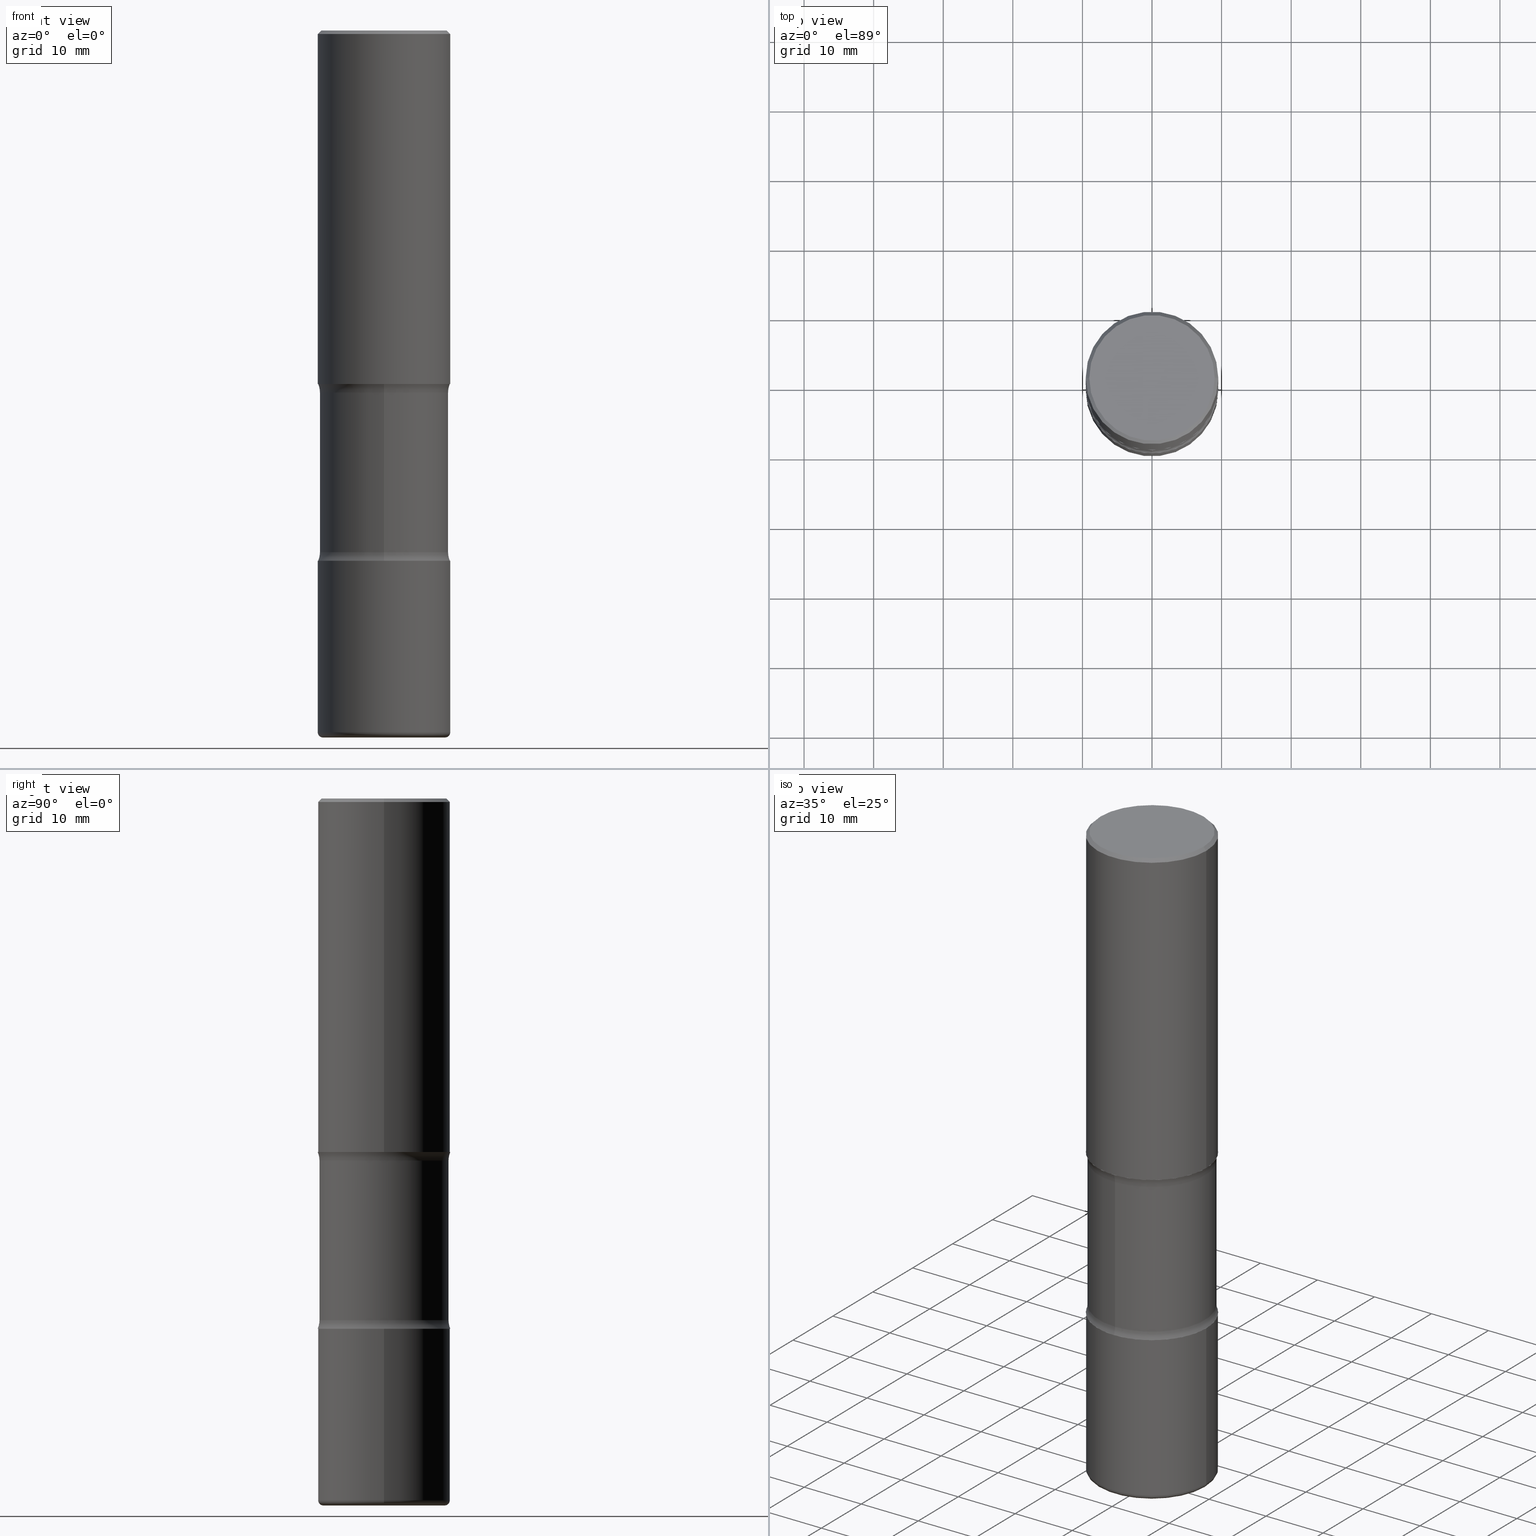
[diagram: canonical four-view strip — front | top / right | iso, engineering-drawing reading convention]
A machine part, canonical four-view strip (front | top / right | iso — engineering-drawing reading convention). The complete STEP part file that produces these views, byte-faithful:
ISO-10303-21;
HEADER;
FILE_DESCRIPTION (( 'STEP AP203' ),
    '1' );
FILE_NAME ('33519.STEP',
    '2024-03-01T22:43:57',
    ( '' ),
    ( '' ),
    'SwSTEP 2.0',
    'SolidWorks 2023',
    '' );
FILE_SCHEMA (( 'CONFIG_CONTROL_DESIGN' ));
ENDSEC;

DATA;
#1 = CARTESIAN_POINT ( 'NONE',  ( 5.191958536339396350E-29, -6.894495272493812152E-15, -2.048989794855665458 ) ) ;
#2 = CARTESIAN_POINT ( 'NONE',  ( 3.421651712066320939E-15, 0.4899999999999929412, -2.048989794855667235 ) ) ;
#3 = CARTESIAN_POINT ( 'NONE',  ( -0.3450000000000001399, -1.135559928655356955E-14, -4.000000000000000000 ) ) ;
#4 = CIRCLE ( 'NONE', #302, 0.3750000000000009437 ) ;
#5 = CARTESIAN_POINT ( 'NONE',  ( -0.3450000000000009170, -1.140980847683493404E-14, -3.969999999999999307 ) ) ;
#6 = EDGE_CURVE ( 'NONE', #410, #147, #288, .T. ) ;
#7 = PERSON_AND_ORGANIZATION ( #455, #47 ) ;
#8 = APPROVAL_STATUS ( 'not_yet_approved' ) ;
#9 = CARTESIAN_POINT ( 'NONE',  ( 0.000000000000000000, 0.000000000000000000, 0.000000000000000000 ) ) ;
#10 = CLOSED_SHELL ( 'NONE', ( #523, #242, #122, #265, #543, #520 ) ) ;
#11 = AXIS2_PLACEMENT_3D ( 'NONE', #34, #66, #552 ) ;
#12 = APPROVAL_DATE_TIME ( #266, #80 ) ;
#13 = CARTESIAN_POINT ( 'NONE',  ( -0.3750000000000008327, 2.664535259100381613E-15, -1.844600658845593802E-29 ) ) ;
#14 = DIRECTION ( 'NONE',  ( 6.982962677686265922E-15, 1.000000000000000000, -4.490709030680980363E-15 ) ) ;
#15 = PERSON_AND_ORGANIZATION_ROLE ( 'classification_officer' ) ;
#16 = DIRECTION ( 'NONE',  ( 6.982962677686265922E-15, 1.000000000000000000, -3.764364172614001380E-15 ) ) ;
#17 = CARTESIAN_POINT ( 'NONE',  ( 7.336406418555407548E-29, -1.047444401652943320E-14, -2.999999999999999112 ) ) ;
#18 = AXIS2_PLACEMENT_3D ( 'NONE', #17, #483, #351 ) ;
#19 = AXIS2_PLACEMENT_3D ( 'NONE', #163, #275, #283 ) ;
#20 = LOCAL_TIME ( 17, 43, 57.00000000000000000, #101 ) ;
#21 = DIRECTION ( 'NONE',  ( -1.000000000000000000, 6.982962677686266711E-15, 0.000000000000000000 ) ) ;
#22 = EDGE_CURVE ( 'NONE', #190, #147, #527, .T. ) ;
#23 = DIRECTION ( 'NONE',  ( 2.438088387897960049E-29, -3.491481338843145188E-15, -1.000000000000000000 ) ) ;
#24 = VERTEX_POINT ( 'NONE', #383 ) ;
#25 = VERTEX_POINT ( 'NONE', #3 ) ;
#26 = DIRECTION ( 'NONE',  ( 1.000000000000000000, -6.982962677686265922E-15, 4.876231632511976973E-29 ) ) ;
#27 = CIRCLE ( 'NONE', #90, 0.3550000000000008149 ) ;
#28 = ORIENTED_EDGE ( 'NONE', *, *, #194, .F. ) ;
#29 = TOROIDAL_SURFACE ( 'NONE', #339, 0.4899999999999998246, 0.1250000000000001110 ) ;
#30 = LOCAL_TIME ( 17, 43, 57.00000000000000000, #515 ) ;
#31 = DIRECTION ( 'NONE',  ( 6.982962677686265922E-15, 1.000000000000000000, -3.764364172614001380E-15 ) ) ;
#32 = EDGE_LOOP ( 'NONE', ( #166, #494 ) ) ;
#33 = VERTEX_POINT ( 'NONE', #297 ) ;
#34 = CARTESIAN_POINT ( 'NONE',  ( 9.708511160554990630E-29, -1.386118091520728581E-14, -3.969999999999999307 ) ) ;
#35 = CC_DESIGN_DATE_AND_TIME_ASSIGNMENT ( #271, #140, ( #219 ) ) ;
#36 = ORIENTED_EDGE ( 'NONE', *, *, #316, .F. ) ;
#37 = CARTESIAN_POINT ( 'NONE',  ( 5.081490676730588573E-29, -6.710079843915434973E-15, -2.000000000000000000 ) ) ;
#38 = CARTESIAN_POINT ( 'NONE',  ( 9.591322160380232129E-29, -1.423880818914343852E-14, -4.000000000000000000 ) ) ;
#39 = AXIS2_PLACEMENT_3D ( 'NONE', #181, #306, #148 ) ;
#40 = AXIS2_PLACEMENT_3D ( 'NONE', #38, #170, #382 ) ;
#41 = DIRECTION ( 'NONE',  ( -2.445468806185136597E-29, 3.491481338843145583E-15, 1.000000000000000000 ) ) ;
#42 = EDGE_CURVE ( 'NONE', #33, #541, #473, .T. ) ;
#43 = ORIENTED_EDGE ( 'NONE', *, *, #42, .F. ) ;
#44 = DIRECTION ( 'NONE',  ( -1.000000000000000000, 7.105427357601017636E-15, 0.000000000000000000 ) ) ;
#45 = VECTOR ( 'NONE', #300, 39.37007874015748143 ) ;
#46 = AXIS2_PLACEMENT_3D ( 'NONE', #550, #489, #452 ) ;
#47 = ORGANIZATION ( 'UNSPECIFIED', 'UNSPECIFIED', '' ) ;
#48 = DIRECTION ( 'NONE',  ( 2.254915741824821778E-29, -3.764364172614001380E-15, -1.000000000000000000 ) ) ;
#49 = APPROVAL_STATUS ( 'not_yet_approved' ) ;
#50 = DIRECTION ( 'NONE',  ( 6.860497997771532351E-15, 1.000000000000000000, 0.000000000000000000 ) ) ;
#51 = CC_DESIGN_PERSON_AND_ORGANIZATION_ASSIGNMENT ( #179, #485, ( #545 ) ) ;
#52 = CALENDAR_DATE ( 2024, 1, 3 ) ;
#53 = CARTESIAN_POINT ( 'NONE',  ( -1.043851414335219820E-46, 1.490343170380447200E-32, 4.268512490100411279E-18 ) ) ;
#54 = PERSON_AND_ORGANIZATION ( #455, #47 ) ;
#55 = DIRECTION ( 'NONE',  ( -2.445468806185136597E-29, 3.491481338843145583E-15, 1.000000000000000000 ) ) ;
#56 = CIRCLE ( 'NONE', #338, 0.3650000000000000466 ) ;
#57 = TOROIDAL_SURFACE ( 'NONE', #155, 0.3450000000000009170, 0.03000000000000019318 ) ;
#58 = APPROVAL ( #49, 'UNSPECIFIED' ) ;
#59 = FACE_OUTER_BOUND ( 'NONE', #505, .T. ) ;
#60 = CARTESIAN_POINT ( 'NONE',  ( -2.572686749164255705E-15, -0.3750000000000111577, -2.999999999999997335 ) ) ;
#61 = EDGE_CURVE ( 'NONE', #147, #82, #56, .T. ) ;
#62 = FACE_OUTER_BOUND ( 'NONE', #162, .T. ) ;
#63 = ADVANCED_FACE ( 'NONE', ( #487 ), #126, .T. ) ;
#64 = AXIS2_PLACEMENT_3D ( 'NONE', #359, #150, #105 ) ;
#65 = AXIS2_PLACEMENT_3D ( 'NONE', #200, #23, #500 ) ;
#66 = DIRECTION ( 'NONE',  ( -2.445468806185136597E-29, 3.491481338843145583E-15, 1.000000000000000000 ) ) ;
#67 = EDGE_LOOP ( 'NONE', ( #229, #72, #331, #43 ) ) ;
#68 = CARTESIAN_POINT ( 'NONE',  ( -1.043851414335219820E-46, 1.490343170380447200E-32, 4.268512490100411279E-18 ) ) ;
#69 = ORIENTED_EDGE ( 'NONE', *, *, #396, .F. ) ;
#70 = CARTESIAN_POINT ( 'NONE',  ( 4.890937612370273159E-31, -6.982962677686291609E-17, -0.02000000000000000042 ) ) ;
#71 = ORIENTED_EDGE ( 'NONE', *, *, #390, .F. ) ;
#72 = ORIENTED_EDGE ( 'NONE', *, *, #194, .T. ) ;
#73 = TOROIDAL_SURFACE ( 'NONE', #458, 0.4899999999999998246, 0.1250000000000001110 ) ;
#74 = PRODUCT_RELATED_PRODUCT_CATEGORY ( 'detail', '', ( #380 ) ) ;
#75 = FACE_OUTER_BOUND ( 'NONE', #113, .T. ) ;
#76 = ORIENTED_EDGE ( 'NONE', *, *, #178, .T. ) ;
#77 = FACE_OUTER_BOUND ( 'NONE', #559, .T. ) ;
#78 = ORIENTED_EDGE ( 'NONE', *, *, #512, .F. ) ;
#79 = DIRECTION ( 'NONE',  ( 1.000000000000000000, -6.982962677686266711E-15, 4.876176775795935232E-29 ) ) ;
#80 = APPROVAL ( #8, 'UNSPECIFIED' ) ;
#81 = FACE_OUTER_BOUND ( 'NONE', #32, .T. ) ;
#82 = VERTEX_POINT ( 'NONE', #362 ) ;
#83 = APPROVAL_PERSON_ORGANIZATION ( #7, #58, #133 ) ;
#84 = FACE_OUTER_BOUND ( 'NONE', #152, .T. ) ;
#85 = EDGE_CURVE ( 'NONE', #433, #498, #435, .T. ) ;
#86 = LINE ( 'NONE', #256, #187 ) ;
#87 =( LENGTH_UNIT ( ) NAMED_UNIT ( * ) SI_UNIT ( $, .METRE. ) );
#88 = CARTESIAN_POINT ( 'NONE',  ( 0.3750000000000008327, -2.618611004132355933E-15, 1.828566290923479846E-29 ) ) ;
#89 = DIRECTION ( 'NONE',  ( 6.982962677686265922E-15, 1.000000000000000000, -3.742257525567486660E-15 ) ) ;
#90 = AXIS2_PLACEMENT_3D ( 'NONE', #53, #440, #357 ) ;
#91 = AXIS2_PLACEMENT_3D ( 'NONE', #161, #404, #31 ) ;
#92 = LOCAL_TIME ( 17, 43, 57.00000000000000000, #480 ) ;
#93 = DIRECTION ( 'NONE',  ( -2.254915741824821218E-29, 3.764364172614001380E-15, 1.000000000000000000 ) ) ;
#94 = PERSON_AND_ORGANIZATION ( #455, #47 ) ;
#95 = DIRECTION ( 'NONE',  ( 6.982962677686265922E-15, 1.000000000000000000, -4.490709030680980363E-15 ) ) ;
#96 = APPROVAL ( #263, 'UNSPECIFIED' ) ;
#97 = CALENDAR_DATE ( 2024, 1, 3 ) ;
#98 = DIRECTION ( 'NONE',  ( -2.445468806185136877E-29, 3.491481338843145188E-15, 1.000000000000000000 ) ) ;
#99 = CIRCLE ( 'NONE', #409, 0.3649999999999997136 ) ;
#100 = AXIS2_PLACEMENT_3D ( 'NONE', #254, #422, #470 ) ;
#101 = COORDINATED_UNIVERSAL_TIME_OFFSET ( 5, 0, .BEHIND. ) ;
#102 = DIRECTION ( 'NONE',  ( 2.254915741824821778E-29, -3.764364172614001380E-15, -1.000000000000000000 ) ) ;
#103 = CALENDAR_DATE ( 2024, 1, 3 ) ;
#104 = CARTESIAN_POINT ( 'NONE',  ( 0.3750000000000009437, -1.647979191933964371E-14, -3.969999999999999307 ) ) ;
#105 = DIRECTION ( 'NONE',  ( -1.000000000000000000, 6.982962677686266711E-15, 0.000000000000000000 ) ) ;
#106 = CARTESIAN_POINT ( 'NONE',  ( 0.3450000000000009170, -1.627030303900905382E-14, -3.969999999999999307 ) ) ;
#107 = ORIENTED_EDGE ( 'NONE', *, *, #85, .T. ) ;
#108 = CIRCLE ( 'NONE', #119, 0.1250000000000001110 ) ;
#109 = ORIENTED_EDGE ( 'NONE', *, *, #168, .F. ) ;
#110 = CARTESIAN_POINT ( 'NONE',  ( 4.890937612370273194E-29, -6.982962677686291165E-15, -2.000000000000000000 ) ) ;
#111 = PLANE ( 'NONE',  #46 ) ;
#112 = ORIENTED_EDGE ( 'NONE', *, *, #165, .T. ) ;
#113 = EDGE_LOOP ( 'NONE', ( #411, #503 ) ) ;
#114 = ORIENTED_EDGE ( 'NONE', *, *, #537, .F. ) ;
#115 = CARTESIAN_POINT ( 'NONE',  ( 9.708511160554990630E-29, -1.386118091520728581E-14, -3.969999999999999307 ) ) ;
#116 = ORIENTED_EDGE ( 'NONE', *, *, #308, .T. ) ;
#117 = EDGE_LOOP ( 'NONE', ( #531, #245, #282, #414 ) ) ;
#118 = AXIS2_PLACEMENT_3D ( 'NONE', #315, #55, #391 ) ;
#119 = AXIS2_PLACEMENT_3D ( 'NONE', #125, #127, #466 ) ;
#120 = DIRECTION ( 'NONE',  ( 1.000000000000000000, -6.982962677686295898E-15, 0.000000000000000000 ) ) ;
#121 = VERTEX_POINT ( 'NONE', #139 ) ;
#122 = ADVANCED_FACE ( 'NONE', ( #522 ), #556, .T. ) ;
#123 = DIRECTION ( 'NONE',  ( 2.254915741824821778E-29, -3.764364172614001380E-15, -1.000000000000000000 ) ) ;
#124 = DIRECTION ( 'NONE',  ( 1.000000000000000000, -6.860497997771530774E-15, 4.837457028734946037E-29 ) ) ;
#125 = CARTESIAN_POINT ( 'NONE',  ( -3.361644018907997202E-15, -0.4900000000000067080, -2.048989794855663238 ) ) ;
#126 = TOROIDAL_SURFACE ( 'NONE', #399, 0.3450000000000009170, 0.03000000000000019318 ) ;
#127 = DIRECTION ( 'NONE',  ( 1.000000000000000000, -6.860497997771530774E-15, 4.837457028734946037E-29 ) ) ;
#128 = AXIS2_PLACEMENT_3D ( 'NONE', #9, #185, #486 ) ;
#129 = EDGE_CURVE ( 'NONE', #448, #454, #86, .T. ) ;
#130 = EDGE_CURVE ( 'NONE', #490, #465, #258, .T. ) ;
#131 = DIRECTION ( 'NONE',  ( 2.254915741824821778E-29, -3.764364172614001380E-15, -1.000000000000000000 ) ) ;
#132 = CARTESIAN_POINT ( 'NONE',  ( 5.201504553319908584E-29, -6.880824832852173514E-15, -2.048989794855665458 ) ) ;
#133 = APPROVAL_ROLE ( '' ) ;
#134 = CONICAL_SURFACE ( 'NONE', #476, 0.3750000000000007772, 0.7853981633974479459 ) ;
#135 = CARTESIAN_POINT ( 'NONE',  ( 1.038862923149454716E-28, -6.103487226666623881E-15, -2.999999999999999556 ) ) ;
#136 = CALENDAR_DATE ( 2024, 1, 3 ) ;
#137 = PLANE ( 'NONE',  #501 ) ;
#138 = EDGE_CURVE ( 'NONE', #541, #454, #509, .T. ) ;
#139 = CARTESIAN_POINT ( 'NONE',  ( -0.3750000000000009437, -8.618608931311945336E-16, -2.000000000000000000 ) ) ;
#140 = DATE_TIME_ROLE ( 'classification_date' ) ;
#141 = EDGE_CURVE ( 'NONE', #24, #490, #481, .T. ) ;
#142 = DIRECTION ( 'NONE',  ( -2.445468806185136877E-29, 3.491481338843145188E-15, 1.000000000000000000 ) ) ;
#143 = APPLICATION_PROTOCOL_DEFINITION ( 'international standard', 'config_control_design', 1994, #235 ) ;
#144 = DIRECTION ( 'NONE',  ( 1.000000000000000000, -6.982962677686266711E-15, 0.000000000000000000 ) ) ;
#145 = AXIS2_PLACEMENT_3D ( 'NONE', #536, #191, #244 ) ;
#146 = APPROVAL_DATE_TIME ( #177, #58 ) ;
#147 = VERTEX_POINT ( 'NONE', #225 ) ;
#148 = DIRECTION ( 'NONE',  ( -6.982962677686265133E-15, -1.000000000000000000, 0.000000000000000000 ) ) ;
#149 = DIRECTION ( 'NONE',  ( 2.254915741824821778E-29, -3.764364172614001380E-15, -1.000000000000000000 ) ) ;
#150 = DIRECTION ( 'NONE',  ( 2.445468806185136597E-29, -3.491481338843145583E-15, -1.000000000000000000 ) ) ;
#151 = DIRECTION ( 'NONE',  ( 1.000000000000000000, -6.982962677686266711E-15, 0.000000000000000000 ) ) ;
#152 = EDGE_LOOP ( 'NONE', ( #28, #417, #418, #36 ) ) ;
#153 = DIRECTION ( 'NONE',  ( 2.438088387897960049E-29, -3.491481338843145188E-15, -1.000000000000000000 ) ) ;
#154 = ORIENTED_EDGE ( 'NONE', *, *, #6, .F. ) ;
#155 = AXIS2_PLACEMENT_3D ( 'NONE', #115, #493, #416 ) ;
#156 = ORIENTED_EDGE ( 'NONE', *, *, #459, .F. ) ;
#157 = PLANE ( 'NONE',  #65 ) ;
#158 = VERTEX_POINT ( 'NONE', #443 ) ;
#159 = EDGE_LOOP ( 'NONE', ( #372, #548, #197, #363 ) ) ;
#160 = ORIENTED_EDGE ( 'NONE', *, *, #172, .F. ) ;
#161 = CARTESIAN_POINT ( 'NONE',  ( 7.216603403414470205E-29, -1.030339706199712749E-14, -2.951010205144334542 ) ) ;
#162 = EDGE_LOOP ( 'NONE', ( #397, #535, #201, #204 ) ) ;
#163 = CARTESIAN_POINT ( 'NONE',  ( 4.890937612370273194E-29, -6.982962677686291165E-15, -2.000000000000000000 ) ) ;
#164 = MANIFOLD_SOLID_BREP ( 'Body-Move/Copy2[2]', #10 ) ;
#165 = EDGE_CURVE ( 'NONE', #448, #234, #27, .T. ) ;
#166 = ORIENTED_EDGE ( 'NONE', *, *, #392, .F. ) ;
#167 = CIRCLE ( 'NONE', #11, 0.3750000000000007772 ) ;
#168 = EDGE_CURVE ( 'NONE', #410, #277, #446, .T. ) ;
#169 = AXIS2_PLACEMENT_3D ( 'NONE', #354, #314, #261 ) ;
#170 = DIRECTION ( 'NONE',  ( 2.254915741824821778E-29, -3.764364172614001380E-15, -1.000000000000000000 ) ) ;
#171 = CARTESIAN_POINT ( 'NONE',  ( -2.572686749164276610E-15, -0.3750000000000072164, -1.999999999999998668 ) ) ;
#172 = EDGE_CURVE ( 'NONE', #158, #82, #457, .T. ) ;
#173 = CARTESIAN_POINT ( 'NONE',  ( 0.3750000000000007772, -1.309305502066178953E-14, -2.999999999999999112 ) ) ;
#174 = DIRECTION ( 'NONE',  ( 1.000000000000000000, -6.982962677686265133E-15, 0.000000000000000000 ) ) ;
#175 = VECTOR ( 'NONE', #98, 39.37007874015748143 ) ;
#176 = FACE_OUTER_BOUND ( 'NONE', #205, .T. ) ;
#177 = DATE_AND_TIME ( #103, #20 ) ;
#178 = EDGE_CURVE ( 'NONE', #82, #147, #384, .T. ) ;
#179 = PERSON_AND_ORGANIZATION ( #455, #47 ) ;
#180 = AXIS2_PLACEMENT_3D ( 'NONE', #68, #233, #26 ) ;
#181 = CARTESIAN_POINT ( 'NONE',  ( 3.421651712066343816E-15, 0.4899999999999898326, -2.951010205144335874 ) ) ;
#182 = CC_DESIGN_APPROVAL ( #80, ( #545 ) ) ;
#183 = COORDINATED_UNIVERSAL_TIME_OFFSET ( 5, 0, .BEHIND. ) ;
#184 = ORIENTED_EDGE ( 'NONE', *, *, #463, .T. ) ;
#185 = DIRECTION ( 'NONE',  ( -2.445468806185136597E-29, 3.491481338843145583E-15, 1.000000000000000000 ) ) ;
#186 = DIRECTION ( 'NONE',  ( 2.254915741824821778E-29, -3.764364172614001380E-15, -1.000000000000000000 ) ) ;
#187 = VECTOR ( 'NONE', #394, 39.37007874015748143 ) ;
#188 = AXIS2_PLACEMENT_3D ( 'NONE', #226, #434, #388 ) ;
#189 = CARTESIAN_POINT ( 'NONE',  ( 7.216603403414470205E-29, -1.030339706199712749E-14, -2.951010205144334542 ) ) ;
#190 = VERTEX_POINT ( 'NONE', #60 ) ;
#191 = DIRECTION ( 'NONE',  ( -2.445468806185136597E-29, 3.491481338843145583E-15, 1.000000000000000000 ) ) ;
#192 = EDGE_LOOP ( 'NONE', ( #287, #232 ) ) ;
#193 = ADVANCED_FACE ( 'NONE', ( #444 ), #521, .T. ) ;
#194 = EDGE_CURVE ( 'NONE', #121, #454, #264, .T. ) ;
#195 = CC_DESIGN_PERSON_AND_ORGANIZATION_ASSIGNMENT ( #54, #530, ( #380 ) ) ;
#196 = DIRECTION ( 'NONE',  ( -6.982962677686266711E-15, -1.000000000000000000, 3.491481338843145583E-15 ) ) ;
#197 = ORIENTED_EDGE ( 'NONE', *, *, #178, .F. ) ;
#198 = AXIS2_PLACEMENT_3D ( 'NONE', #291, #419, #429 ) ;
#199 = EDGE_LOOP ( 'NONE', ( #154, #407, #395, #243 ) ) ;
#200 = CARTESIAN_POINT ( 'NONE',  ( 2.478951750578629731E-15, 0.3550000000000008149, -1.237341619044269188E-15 ) ) ;
#201 = ORIENTED_EDGE ( 'NONE', *, *, #346, .F. ) ;
#202 = EDGE_CURVE ( 'NONE', #234, #541, #524, .T. ) ;
#203 = DIRECTION ( 'NONE',  ( 2.254915741824821778E-29, -3.764364172614001380E-15, -1.000000000000000000 ) ) ;
#204 = ORIENTED_EDGE ( 'NONE', *, *, #220, .F. ) ;
#205 = EDGE_LOOP ( 'NONE', ( #71, #319 ) ) ;
#206 = DIRECTION ( 'NONE',  ( 6.982962677686265922E-15, 1.000000000000000000, -3.764364172614001380E-15 ) ) ;
#207 = VECTOR ( 'NONE', #216, 39.37007874015748143 ) ;
#208 = CIRCLE ( 'NONE', #145, 0.3750000000000007772 ) ;
#209 = DIRECTION ( 'NONE',  ( 1.000000000000000000, -6.982962677686266711E-15, 4.876176775795935232E-29 ) ) ;
#210 = CARTESIAN_POINT ( 'NONE',  ( 9.781875224740546387E-29, -1.396592535537258233E-14, -4.000000000000000000 ) ) ;
#211 = AXIS2_PLACEMENT_3D ( 'NONE', #365, #324, #374 ) ;
#212 = PLANE ( 'NONE',  #100 ) ;
#213 = CALENDAR_DATE ( 2024, 1, 3 ) ;
#214 = ADVANCED_FACE ( 'NONE', ( #62 ), #262, .T. ) ;
#215 = PERSON_AND_ORGANIZATION_ROLE ( 'creator' ) ;
#216 = DIRECTION ( 'NONE',  ( -2.445468806185136877E-29, 3.491481338843145188E-15, 1.000000000000000000 ) ) ;
#217 = AXIS2_PLACEMENT_3D ( 'NONE', #106, #196, #120 ) ;
#218 = FACE_OUTER_BOUND ( 'NONE', #199, .T. ) ;
#219 = SECURITY_CLASSIFICATION ( '', '', #348 ) ;
#220 = EDGE_CURVE ( 'NONE', #222, #465, #398, .T. ) ;
#221 = PERSON_AND_ORGANIZATION ( #455, #47 ) ;
#222 = VERTEX_POINT ( 'NONE', #104 ) ;
#223 = DIRECTION ( 'NONE',  ( 2.254915741824821778E-29, -3.764364172614001380E-15, -1.000000000000000000 ) ) ;
#224 = APPLICATION_CONTEXT ( 'configuration controlled 3d designs of mechanical parts and assemblies' ) ;
#225 = CARTESIAN_POINT ( 'NONE',  ( -2.538384259175396264E-15, -0.3650000000000103717, -2.951010205144333209 ) ) ;
#226 = CARTESIAN_POINT ( 'NONE',  ( 9.591322160380232129E-29, -1.423880818914343852E-14, -4.000000000000000000 ) ) ;
#227 = VECTOR ( 'NONE', #415, 39.37007874015748143 ) ;
#228 = AXIS2_PLACEMENT_3D ( 'NONE', #238, #540, #447 ) ;
#229 = ORIENTED_EDGE ( 'NONE', *, *, #392, .T. ) ;
#230 = CARTESIAN_POINT ( 'NONE',  ( 2.548781377355537205E-15, 0.3649999999999928302, -2.048989794855666791 ) ) ;
#231 = ADVANCED_FACE ( 'NONE', ( #218 ), #274, .T. ) ;
#232 = ORIENTED_EDGE ( 'NONE', *, *, #130, .T. ) ;
#233 = DIRECTION ( 'NONE',  ( -2.445468806185136597E-29, 3.491481338843145583E-15, 1.000000000000000000 ) ) ;
#234 = VERTEX_POINT ( 'NONE', #268 ) ;
#235 = APPLICATION_CONTEXT ( 'configuration controlled 3d designs of mechanical parts and assemblies' ) ;
#236 = ADVANCED_FACE ( 'NONE', ( #59 ), #468, .F. ) ;
#237 = ORIENTED_EDGE ( 'NONE', *, *, #172, .T. ) ;
#238 = CARTESIAN_POINT ( 'NONE',  ( 7.336406418555407548E-29, -1.047444401652943320E-14, -2.999999999999999112 ) ) ;
#239 = ORIENTED_EDGE ( 'NONE', *, *, #293, .T. ) ;
#240 = AXIS2_PLACEMENT_3D ( 'NONE', #507, #124, #50 ) ;
#241 = AXIS2_PLACEMENT_3D ( 'NONE', #210, #41, #174 ) ;
#242 = ADVANCED_FACE ( 'NONE', ( #312 ), #134, .T. ) ;
#243 = ORIENTED_EDGE ( 'NONE', *, *, #61, .F. ) ;
#244 = DIRECTION ( 'NONE',  ( 1.000000000000000000, -6.982962677686263555E-15, 0.000000000000000000 ) ) ;
#245 = ORIENTED_EDGE ( 'NONE', *, *, #165, .F. ) ;
#246 = ORIENTED_EDGE ( 'NONE', *, *, #308, .F. ) ;
#247 = CARTESIAN_POINT ( 'NONE',  ( -2.504081769186512369E-15, -0.3650000000000141465, -3.999999999999998224 ) ) ;
#248 = DIRECTION ( 'NONE',  ( -1.000000000000000000, 6.982962677686265922E-15, -4.876176775795935793E-29 ) ) ;
#249 = ADVANCED_FACE ( 'NONE', ( #516 ), #137, .F. ) ;
#250 = ORIENTED_EDGE ( 'NONE', *, *, #441, .T. ) ;
#251 = DIRECTION ( 'NONE',  ( 6.982962677686265922E-15, 1.000000000000000000, -3.764364172614001380E-15 ) ) ;
#252 = ADVANCED_FACE ( 'NONE', ( #317 ), #57, .T. ) ;
#253 = AXIS2_PLACEMENT_3D ( 'NONE', #533, #186, #309 ) ;
#254 = CARTESIAN_POINT ( 'NONE',  ( 4.890937612370273194E-29, -6.982962677686291165E-15, -2.000000000000000000 ) ) ;
#255 = CYLINDRICAL_SURFACE ( 'NONE', #532, 0.3750000000000008327 ) ;
#256 = CARTESIAN_POINT ( 'NONE',  ( -0.3750000000000007772, 2.548781377355492635E-15, -0.02000000000000000042 ) ) ;
#257 = CARTESIAN_POINT ( 'NONE',  ( 0.3750000000000007772, -2.642516375941192367E-15, -0.02000000000000000042 ) ) ;
#258 = CIRCLE ( 'NONE', #18, 0.3750000000000007772 ) ;
#259 = CIRCLE ( 'NONE', #517, 0.3750000000000007772 ) ;
#260 = CARTESIAN_POINT ( 'NONE',  ( 2.618611004132404053E-15, 0.3749999999999938383, -2.000000000000001332 ) ) ;
#261 = DIRECTION ( 'NONE',  ( 1.000000000000000000, 0.000000000000000000, 0.000000000000000000 ) ) ;
#262 = CYLINDRICAL_SURFACE ( 'NONE', #128, 0.3750000000000007772 ) ;
#263 = APPROVAL_STATUS ( 'not_yet_approved' ) ;
#264 = LINE ( 'NONE', #13, #427 ) ;
#265 = ADVANCED_FACE ( 'NONE', ( #77 ), #157, .F. ) ;
#266 = DATE_AND_TIME ( #52, #92 ) ;
#267 = AXIS2_PLACEMENT_3D ( 'NONE', #5, #341, #44 ) ;
#268 = CARTESIAN_POINT ( 'NONE',  ( 0.3550000000000008149, -2.538996582575045781E-15, 4.268512490117958041E-18 ) ) ;
#269 = CC_DESIGN_APPROVAL ( #96, ( #219 ) ) ;
#270 = CC_DESIGN_DATE_AND_TIME_ASSIGNMENT ( #393, #311, ( #329 ) ) ;
#271 = DATE_AND_TIME ( #136, #428 ) ;
#272 = DIRECTION ( 'NONE',  ( 0.7071067811865472397, -7.319954787623254468E-15, -0.7071067811865477948 ) ) ;
#273 = MECHANICAL_CONTEXT ( 'NONE', #235, 'mechanical' ) ;
#274 = CYLINDRICAL_SURFACE ( 'NONE', #188, 0.3649999999999999356 ) ;
#275 = DIRECTION ( 'NONE',  ( -2.445468806185136597E-29, 3.491481338843145583E-15, 1.000000000000000000 ) ) ;
#276 = VECTOR ( 'NONE', #402, 39.37007874015748143 ) ;
#277 = VERTEX_POINT ( 'NONE', #230 ) ;
#278 = DIRECTION ( 'NONE',  ( -2.445468806185136597E-29, 3.491481338843145583E-15, 1.000000000000000000 ) ) ;
#279 = ORIENTED_EDGE ( 'NONE', *, *, #293, .F. ) ;
#280 = CARTESIAN_POINT ( 'NONE',  ( 7.336406418555407548E-29, -1.047444401652943320E-14, -2.999999999999999112 ) ) ;
#281 = ADVANCED_FACE ( 'NONE', ( #75 ), #111, .T. ) ;
#282 = ORIENTED_EDGE ( 'NONE', *, *, #129, .T. ) ;
#283 = DIRECTION ( 'NONE',  ( 1.000000000000000000, -6.982962677686263555E-15, 0.000000000000000000 ) ) ;
#284 = ORIENTED_EDGE ( 'NONE', *, *, #298, .T. ) ;
#285 = AXIS2_PLACEMENT_3D ( 'NONE', #189, #223, #16 ) ;
#286 = LOCAL_TIME ( 17, 43, 57.00000000000000000, #307 ) ;
#287 = ORIENTED_EDGE ( 'NONE', *, *, #346, .T. ) ;
#288 = LINE ( 'NONE', #247, #227 ) ;
#289 = DIRECTION ( 'NONE',  ( -6.982962677686265922E-15, -1.000000000000000000, 3.764364172614001380E-15 ) ) ;
#290 = ORIENTED_EDGE ( 'NONE', *, *, #22, .T. ) ;
#291 = CARTESIAN_POINT ( 'NONE',  ( 4.890937612370273194E-29, -6.982962677686291165E-15, -2.000000000000000000 ) ) ;
#292 = CARTESIAN_POINT ( 'NONE',  ( -0.3750000000000007772, -9.503277206767979072E-15, -2.999999999999999112 ) ) ;
#293 = EDGE_CURVE ( 'NONE', #549, #222, #529, .T. ) ;
#294 = AXIS2_PLACEMENT_3D ( 'NONE', #546, #131, #425 ) ;
#295 = FACE_OUTER_BOUND ( 'NONE', #538, .T. ) ;
#296 = CARTESIAN_POINT ( 'NONE',  ( 0.000000000000000000, 0.000000000000000000, 0.000000000000000000 ) ) ;
#297 = CARTESIAN_POINT ( 'NONE',  ( 0.3750000000000009437, -9.601573681818646704E-15, -2.000000000000000000 ) ) ;
#298 = EDGE_CURVE ( 'NONE', #24, #222, #208, .T. ) ;
#299 = FACE_OUTER_BOUND ( 'NONE', #67, .T. ) ;
#300 = DIRECTION ( 'NONE',  ( -2.445468806185136877E-29, 3.491481338843145188E-15, 1.000000000000000000 ) ) ;
#301 = DESIGN_CONTEXT ( 'detailed design', #224, 'design' ) ;
#302 = AXIS2_PLACEMENT_3D ( 'NONE', #110, #278, #450 ) ;
#303 =( NAMED_UNIT ( * ) SI_UNIT ( $, .STERADIAN. ) SOLID_ANGLE_UNIT ( ) );
#304 = CARTESIAN_POINT ( 'NONE',  ( 0.3750000000000007772, -2.642516375941192367E-15, -0.02000000000000000042 ) ) ;
#305 =( NAMED_UNIT ( * ) PLANE_ANGLE_UNIT ( ) SI_UNIT ( $, .RADIAN. ) );
#306 = DIRECTION ( 'NONE',  ( -1.000000000000000000, 6.982962677686265922E-15, -4.883557194083112901E-29 ) ) ;
#307 = COORDINATED_UNIVERSAL_TIME_OFFSET ( 5, 0, .BEHIND. ) ;
#308 = EDGE_CURVE ( 'NONE', #190, #158, #259, .T. ) ;
#309 = DIRECTION ( 'NONE',  ( 6.982962677686265922E-15, 1.000000000000000000, -3.742257525567486660E-15 ) ) ;
#310 = EDGE_CURVE ( 'NONE', #549, #25, #544, .T. ) ;
#311 = DATE_TIME_ROLE ( 'creation_date' ) ;
#312 = FACE_OUTER_BOUND ( 'NONE', #358, .T. ) ;
#313 = CC_DESIGN_SECURITY_CLASSIFICATION ( #219, ( #545 ) ) ;
#314 = DIRECTION ( 'NONE',  ( 0.000000000000000000, 0.000000000000000000, 1.000000000000000000 ) ) ;
#315 = CARTESIAN_POINT ( 'NONE',  ( 0.000000000000000000, 0.000000000000000000, 0.000000000000000000 ) ) ;
#316 = EDGE_CURVE ( 'NONE', #454, #541, #491, .T. ) ;
#317 = FACE_OUTER_BOUND ( 'NONE', #403, .T. ) ;
#318 = ORIENTED_EDGE ( 'NONE', *, *, #130, .F. ) ;
#319 = ORIENTED_EDGE ( 'NONE', *, *, #85, .F. ) ;
#320 = DIRECTION ( 'NONE',  ( 2.254915741824821778E-29, -3.764364172614001380E-15, -1.000000000000000000 ) ) ;
#321 = CIRCLE ( 'NONE', #228, 0.3750000000000007772 ) ;
#322 = EDGE_LOOP ( 'NONE', ( #551, #250, #373, #279 ) ) ;
#323 = ADVANCED_FACE ( 'NONE', ( #496 ), #355, .F. ) ;
#324 = DIRECTION ( 'NONE',  ( -2.445468806185136597E-29, 3.491481338843145583E-15, 1.000000000000000000 ) ) ;
#325 = ORIENTED_EDGE ( 'NONE', *, *, #405, .T. ) ;
#326 = ORIENTED_EDGE ( 'NONE', *, *, #512, .T. ) ;
#327 = ORIENTED_EDGE ( 'NONE', *, *, #138, .T. ) ;
#328 = CARTESIAN_POINT ( 'NONE',  ( 1.038862923149454716E-28, -6.103487226666623881E-15, -2.999999999999999556 ) ) ;
#329 = PRODUCT_DEFINITION ( 'UNKNOWN', '', #545, #301 ) ;
#330 = LINE ( 'NONE', #461, #276 ) ;
#331 = ORIENTED_EDGE ( 'NONE', *, *, #138, .F. ) ;
#332 =( GEOMETRIC_REPRESENTATION_CONTEXT ( 3 ) GLOBAL_UNCERTAINTY_ASSIGNED_CONTEXT ( ( #555 ) ) GLOBAL_UNIT_ASSIGNED_CONTEXT ( ( #350, #305, #303 ) ) REPRESENTATION_CONTEXT ( 'NONE', 'WORKASPACE' ) );
#333 = CARTESIAN_POINT ( 'NONE',  ( -2.538384259175415591E-15, -0.3650000000000065969, -2.048989794855664126 ) ) ;
#334 = EDGE_CURVE ( 'NONE', #121, #33, #400, .T. ) ;
#335 = CARTESIAN_POINT ( 'NONE',  ( -0.3550000000000008149, 2.513866563967061380E-15, 4.268512490082953109E-18 ) ) ;
#336 = EDGE_CURVE ( 'NONE', #222, #24, #167, .T. ) ;
#337 = CYLINDRICAL_SURFACE ( 'NONE', #40, 0.3649999999999999356 ) ;
#338 = AXIS2_PLACEMENT_3D ( 'NONE', #475, #149, #14 ) ;
#339 = AXIS2_PLACEMENT_3D ( 'NONE', #132, #506, #206 ) ;
#340 = ORIENTED_EDGE ( 'NONE', *, *, #61, .T. ) ;
#341 = DIRECTION ( 'NONE',  ( 7.105427357601001859E-15, 1.000000000000000000, -3.491481338843145583E-15 ) ) ;
#342 = EDGE_CURVE ( 'NONE', #277, #82, #330, .T. ) ;
#343 = DIRECTION ( 'NONE',  ( 2.254915741824821778E-29, -3.764364172614001380E-15, -1.000000000000000000 ) ) ;
#344 = CC_DESIGN_PERSON_AND_ORGANIZATION_ASSIGNMENT ( #221, #345, ( #329 ) ) ;
#345 = PERSON_AND_ORGANIZATION_ROLE ( 'creator' ) ;
#346 = EDGE_CURVE ( 'NONE', #465, #490, #321, .T. ) ;
#347 = CIRCLE ( 'NONE', #558, 0.3750000000000004996 ) ;
#348 = SECURITY_CLASSIFICATION_LEVEL ( 'unclassified' ) ;
#349 = CARTESIAN_POINT ( 'NONE',  ( 4.890937612370273159E-31, -6.982962677686291609E-17, -0.02000000000000000042 ) ) ;
#350 =( CONVERSION_BASED_UNIT ( 'INCH', #442 ) LENGTH_UNIT ( ) NAMED_UNIT ( #406 ) );
#351 = DIRECTION ( 'NONE',  ( 1.000000000000000000, -6.982962677686269077E-15, 0.000000000000000000 ) ) ;
#352 = CARTESIAN_POINT ( 'NONE',  ( 0.3750000000000007772, -2.618611004132355538E-15, 1.828566290923479846E-29 ) ) ;
#353 = CLOSED_SHELL ( 'NONE', ( #214, #63, #281, #252, #193, #378 ) ) ;
#354 = CARTESIAN_POINT ( 'NONE',  ( 0.000000000000000000, 0.000000000000000000, 0.000000000000000000 ) ) ;
#355 = TOROIDAL_SURFACE ( 'NONE', #91, 0.4900000000000001577, 0.1250000000000000278 ) ;
#356 = CIRCLE ( 'NONE', #469, 0.1250000000000001110 ) ;
#357 = DIRECTION ( 'NONE',  ( 1.000000000000000000, -6.982962677686265922E-15, 4.876231632511976973E-29 ) ) ;
#358 = EDGE_LOOP ( 'NONE', ( #69, #525, #327, #547 ) ) ;
#359 = CARTESIAN_POINT ( 'NONE',  ( 4.890937612370273159E-31, -6.982962677686291609E-17, -0.02000000000000000042 ) ) ;
#360 = EDGE_LOOP ( 'NONE', ( #449, #553, #237, #76 ) ) ;
#361 = DIRECTION ( 'NONE',  ( 6.982962677686266711E-15, 1.000000000000000000, -3.642463991552346225E-15 ) ) ;
#362 = CARTESIAN_POINT ( 'NONE',  ( 2.548781377355560082E-15, 0.3649999999999897771, -2.951010205144336318 ) ) ;
#363 = ORIENTED_EDGE ( 'NONE', *, *, #342, .F. ) ;
#364 = ORIENTED_EDGE ( 'NONE', *, *, #441, .F. ) ;
#365 = CARTESIAN_POINT ( 'NONE',  ( 9.781875224740546387E-29, -1.396592535537258233E-14, -4.000000000000000000 ) ) ;
#366 = AXIS2_PLACEMENT_3D ( 'NONE', #401, #102, #95 ) ;
#367 = EDGE_LOOP ( 'NONE', ( #421, #284, #453, #318 ) ) ;
#368 = EDGE_LOOP ( 'NONE', ( #109, #371, #107, #78 ) ) ;
#369 = APPROVAL_DATE_TIME ( #438, #96 ) ;
#370 = FACE_OUTER_BOUND ( 'NONE', #192, .T. ) ;
#371 = ORIENTED_EDGE ( 'NONE', *, *, #537, .T. ) ;
#372 = ORIENTED_EDGE ( 'NONE', *, *, #459, .T. ) ;
#373 = ORIENTED_EDGE ( 'NONE', *, *, #336, .F. ) ;
#374 = DIRECTION ( 'NONE',  ( 1.000000000000000000, -6.982962677686265133E-15, 0.000000000000000000 ) ) ;
#375 = DIRECTION ( 'NONE',  ( -6.982962677686264344E-15, -1.000000000000000000, 0.000000000000000000 ) ) ;
#376 = ORIENTED_EDGE ( 'NONE', *, *, #298, .F. ) ;
#377 = AXIS2_PLACEMENT_3D ( 'NONE', #328, #153, #248 ) ;
#378 = ADVANCED_FACE ( 'NONE', ( #370 ), #408, .F. ) ;
#379 = DIRECTION ( 'NONE',  ( -2.445468806185136597E-29, 3.491481338843145583E-15, 1.000000000000000000 ) ) ;
#380 = PRODUCT ( '33519', '33519', '', ( #273 ) ) ;
#381 = FACE_OUTER_BOUND ( 'NONE', #368, .T. ) ;
#382 = DIRECTION ( 'NONE',  ( 6.982962677686265922E-15, 1.000000000000000000, -4.490709030680981152E-15 ) ) ;
#383 = CARTESIAN_POINT ( 'NONE',  ( -0.3750000000000009437, -1.119664565610690538E-14, -3.969999999999999307 ) ) ;
#384 = CIRCLE ( 'NONE', #366, 0.3650000000000000466 ) ;
#385 = APPROVAL_PERSON_ORGANIZATION ( #94, #96, #432 ) ;
#386 = CARTESIAN_POINT ( 'NONE',  ( -0.3750000000000007772, 2.548781377355492635E-15, -0.02000000000000000042 ) ) ;
#387 = APPLICATION_PROTOCOL_DEFINITION ( 'international standard', 'config_control_design', 1994, #224 ) ;
#388 = DIRECTION ( 'NONE',  ( 6.982962677686265922E-15, 1.000000000000000000, -4.490709030680981152E-15 ) ) ;
#389 = CIRCLE ( 'NONE', #294, 0.3750000000000007772 ) ;
#390 = EDGE_CURVE ( 'NONE', #498, #433, #347, .T. ) ;
#391 = DIRECTION ( 'NONE',  ( 1.000000000000000000, -6.982962677686266711E-15, 4.876176775795936353E-29 ) ) ;
#392 = EDGE_CURVE ( 'NONE', #33, #121, #4, .T. ) ;
#393 = DATE_AND_TIME ( #213, #30 ) ;
#394 = DIRECTION ( 'NONE',  ( -0.7071067811865472397, 2.468850131082253905E-15, -0.7071067811865477948 ) ) ;
#395 = ORIENTED_EDGE ( 'NONE', *, *, #342, .T. ) ;
#396 = EDGE_CURVE ( 'NONE', #234, #448, #420, .T. ) ;
#397 = ORIENTED_EDGE ( 'NONE', *, *, #336, .T. ) ;
#398 = LINE ( 'NONE', #352, #175 ) ;
#399 = AXIS2_PLACEMENT_3D ( 'NONE', #554, #542, #464 ) ;
#400 = CIRCLE ( 'NONE', #19, 0.3750000000000009437 ) ;
#401 = CARTESIAN_POINT ( 'NONE',  ( 7.225938558946600892E-29, -1.029002858795106075E-14, -2.951010205144334986 ) ) ;
#402 = DIRECTION ( 'NONE',  ( 2.254915741824821498E-29, -3.764364172614001380E-15, -1.000000000000000000 ) ) ;
#403 = EDGE_LOOP ( 'NONE', ( #364, #184, #239, #376 ) ) ;
#404 = DIRECTION ( 'NONE',  ( 2.254915741824821778E-29, -3.764364172614001380E-15, -1.000000000000000000 ) ) ;
#405 = EDGE_CURVE ( 'NONE', #158, #190, #389, .T. ) ;
#406 = DIMENSIONAL_EXPONENTS ( 1.000000000000000000, 0.000000000000000000, 0.000000000000000000, 0.000000000000000000, 0.000000000000000000, 0.000000000000000000, 0.000000000000000000 ) ;
#407 = ORIENTED_EDGE ( 'NONE', *, *, #168, .T. ) ;
#408 = PLANE ( 'NONE',  #377 ) ;
#409 = AXIS2_PLACEMENT_3D ( 'NONE', #1, #343, #89 ) ;
#410 = VERTEX_POINT ( 'NONE', #333 ) ;
#411 = ORIENTED_EDGE ( 'NONE', *, *, #310, .F. ) ;
#412 = DIRECTION ( 'NONE',  ( -2.445468806185136597E-29, 3.491481338843145583E-15, 1.000000000000000000 ) ) ;
#413 = EDGE_LOOP ( 'NONE', ( #325, #116 ) ) ;
#414 = ORIENTED_EDGE ( 'NONE', *, *, #316, .T. ) ;
#415 = DIRECTION ( 'NONE',  ( 2.254915741824821498E-29, -3.764364172614001380E-15, -1.000000000000000000 ) ) ;
#416 = DIRECTION ( 'NONE',  ( 1.000000000000000000, -6.982962677686269077E-15, 4.883557194083113462E-29 ) ) ;
#417 = ORIENTED_EDGE ( 'NONE', *, *, #334, .T. ) ;
#418 = ORIENTED_EDGE ( 'NONE', *, *, #42, .T. ) ;
#419 = DIRECTION ( 'NONE',  ( 2.254915741824821218E-29, -3.764364172614001380E-15, -1.000000000000000000 ) ) ;
#420 = CIRCLE ( 'NONE', #180, 0.3550000000000008149 ) ;
#421 = ORIENTED_EDGE ( 'NONE', *, *, #141, .F. ) ;
#422 = DIRECTION ( 'NONE',  ( -2.438088387897960049E-29, 3.491481338843145188E-15, 1.000000000000000000 ) ) ;
#423 = ADVANCED_FACE ( 'NONE', ( #176 ), #560, .F. ) ;
#424 = CARTESIAN_POINT ( 'NONE',  ( 0.3450000000000001399, -1.637504747917434403E-14, -4.000000000000000000 ) ) ;
#425 = DIRECTION ( 'NONE',  ( 6.982962677686266711E-15, 1.000000000000000000, -4.370956789862812472E-15 ) ) ;
#426 = CARTESIAN_POINT ( 'NONE',  ( 5.081490676730588573E-29, -6.710079843915434973E-15, -2.000000000000000000 ) ) ;
#427 = VECTOR ( 'NONE', #142, 39.37007874015748143 ) ;
#428 = LOCAL_TIME ( 17, 43, 57.00000000000000000, #183 ) ;
#429 = DIRECTION ( 'NONE',  ( 6.982962677686265922E-15, 1.000000000000000000, -3.764364172614001380E-15 ) ) ;
#430 = APPROVAL_ROLE ( '' ) ;
#431 = DIRECTION ( 'NONE',  ( 2.445468806185136597E-29, -3.491481338843145583E-15, -1.000000000000000000 ) ) ;
#432 = APPROVAL_ROLE ( '' ) ;
#433 = VERTEX_POINT ( 'NONE', #171 ) ;
#434 = DIRECTION ( 'NONE',  ( 2.254915741824821778E-29, -3.764364172614001380E-15, -1.000000000000000000 ) ) ;
#435 = CIRCLE ( 'NONE', #499, 0.3750000000000004996 ) ;
#436 = AXIS2_PLACEMENT_3D ( 'NONE', #70, #412, #151 ) ;
#437 = DIRECTION ( 'NONE',  ( 6.982962677686266711E-15, 1.000000000000000000, -3.642463991552346225E-15 ) ) ;
#438 = DATE_AND_TIME ( #97, #286 ) ;
#439 = APPROVAL_PERSON_ORGANIZATION ( #478, #80, #430 ) ;
#440 = DIRECTION ( 'NONE',  ( -2.445468806185136597E-29, 3.491481338843145583E-15, 1.000000000000000000 ) ) ;
#441 = EDGE_CURVE ( 'NONE', #25, #24, #510, .T. ) ;
#442 = LENGTH_MEASURE_WITH_UNIT ( LENGTH_MEASURE( 0.02539999999999999897 ), #87 );
#443 = CARTESIAN_POINT ( 'NONE',  ( 2.618611004132428508E-15, 0.3749999999999902855, -3.000000000000000888 ) ) ;
#444 = FACE_OUTER_BOUND ( 'NONE', #367, .T. ) ;
#445 = AXIS2_PLACEMENT_3D ( 'NONE', #349, #479, #144 ) ;
#446 = CIRCLE ( 'NONE', #253, 0.3649999999999997136 ) ;
#447 = DIRECTION ( 'NONE',  ( 1.000000000000000000, -6.982962677686269077E-15, 0.000000000000000000 ) ) ;
#448 = VERTEX_POINT ( 'NONE', #335 ) ;
#449 = ORIENTED_EDGE ( 'NONE', *, *, #22, .F. ) ;
#450 = DIRECTION ( 'NONE',  ( 1.000000000000000000, -6.982962677686263555E-15, 0.000000000000000000 ) ) ;
#451 = ADVANCED_FACE ( 'NONE', ( #381 ), #29, .F. ) ;
#452 = DIRECTION ( 'NONE',  ( -1.000000000000000000, 6.982962677686265922E-15, -4.876176775795935793E-29 ) ) ;
#453 = ORIENTED_EDGE ( 'NONE', *, *, #220, .T. ) ;
#454 = VERTEX_POINT ( 'NONE', #386 ) ;
#455 = PERSON ( 'UNSPECIFIED', 'UNSPECIFIED', 'UNSPECIFIED', ('UNSPECIFIED'), ('UNSPECIFIED'), ('UNSPECIFIED') ) ;
#456 = CLOSED_SHELL ( 'NONE', ( #467, #236, #451, #497, #423, #249, #323, #231 ) ) ;
#457 = CIRCLE ( 'NONE', #39, 0.1250000000000000278 ) ;
#458 = AXIS2_PLACEMENT_3D ( 'NONE', #511, #123, #251 ) ;
#459 = EDGE_CURVE ( 'NONE', #277, #410, #99, .T. ) ;
#460 = ORIENTED_EDGE ( 'NONE', *, *, #390, .T. ) ;
#461 = CARTESIAN_POINT ( 'NONE',  ( 2.548781377355582959E-15, 0.3649999999999857248, -4.000000000000001776 ) ) ;
#462 = ORIENTED_EDGE ( 'NONE', *, *, #396, .T. ) ;
#463 = EDGE_CURVE ( 'NONE', #25, #549, #484, .T. ) ;
#464 = DIRECTION ( 'NONE',  ( 1.000000000000000000, -6.982962677686269077E-15, 4.883557194083113462E-29 ) ) ;
#465 = VERTEX_POINT ( 'NONE', #173 ) ;
#466 = DIRECTION ( 'NONE',  ( 6.860497997771531562E-15, 1.000000000000000000, 0.000000000000000000 ) ) ;
#467 = ADVANCED_FACE ( 'NONE', ( #504 ), #337, .T. ) ;
#468 = TOROIDAL_SURFACE ( 'NONE', #285, 0.4900000000000001577, 0.1250000000000000278 ) ;
#469 = AXIS2_PLACEMENT_3D ( 'NONE', #2, #474, #375 ) ;
#470 = DIRECTION ( 'NONE',  ( 1.000000000000000000, -6.982962677686265922E-15, 4.876176775795935793E-29 ) ) ;
#471 = PRODUCT_DEFINITION_SHAPE ( 'NONE', 'NONE',  #329 ) ;
#472 = DIRECTION ( 'NONE',  ( -2.445468806185136597E-29, 3.491481338843145583E-15, 1.000000000000000000 ) ) ;
#473 = LINE ( 'NONE', #88, #45 ) ;
#474 = DIRECTION ( 'NONE',  ( -1.000000000000000000, 6.982962677686265922E-15, -4.883557194083112901E-29 ) ) ;
#475 = CARTESIAN_POINT ( 'NONE',  ( 7.225938558946600892E-29, -1.029002858795106075E-14, -2.951010205144334986 ) ) ;
#476 = AXIS2_PLACEMENT_3D ( 'NONE', #519, #431, #21 ) ;
#477 = AXIS2_PLACEMENT_3D ( 'NONE', #508, #379, #79 ) ;
#478 = PERSON_AND_ORGANIZATION ( #455, #47 ) ;
#479 = DIRECTION ( 'NONE',  ( -2.445468806185136597E-29, 3.491481338843145583E-15, 1.000000000000000000 ) ) ;
#480 = COORDINATED_UNIVERSAL_TIME_OFFSET ( 5, 0, .BEHIND. ) ;
#481 = LINE ( 'NONE', #488, #207 ) ;
#482 = PERSON_AND_ORGANIZATION ( #455, #47 ) ;
#483 = DIRECTION ( 'NONE',  ( -2.445468806185136597E-29, 3.491481338843145583E-15, 1.000000000000000000 ) ) ;
#484 = CIRCLE ( 'NONE', #241, 0.3450000000000001399 ) ;
#485 = PERSON_AND_ORGANIZATION_ROLE ( 'design_supplier' ) ;
#486 = DIRECTION ( 'NONE',  ( 1.000000000000000000, -6.982962677686266711E-15, 4.876176775795936353E-29 ) ) ;
#487 = FACE_OUTER_BOUND ( 'NONE', #322, .T. ) ;
#488 = CARTESIAN_POINT ( 'NONE',  ( -0.3750000000000007772, 2.664535259100381219E-15, -1.844600658845593522E-29 ) ) ;
#489 = DIRECTION ( 'NONE',  ( 2.438088387897960049E-29, -3.491481338843145188E-15, -1.000000000000000000 ) ) ;
#490 = VERTEX_POINT ( 'NONE', #292 ) ;
#491 = CIRCLE ( 'NONE', #436, 0.3750000000000007772 ) ;
#492 = DIRECTION ( 'NONE',  ( 6.982962677686266711E-15, 1.000000000000000000, -4.370956789862812472E-15 ) ) ;
#493 = DIRECTION ( 'NONE',  ( -2.445468806185136597E-29, 3.491481338843145583E-15, 1.000000000000000000 ) ) ;
#494 = ORIENTED_EDGE ( 'NONE', *, *, #334, .F. ) ;
#495 = SHAPE_DEFINITION_REPRESENTATION ( #471, #513 ) ;
#496 = FACE_OUTER_BOUND ( 'NONE', #360, .T. ) ;
#497 = ADVANCED_FACE ( 'NONE', ( #295 ), #73, .F. ) ;
#498 = VERTEX_POINT ( 'NONE', #260 ) ;
#499 = AXIS2_PLACEMENT_3D ( 'NONE', #426, #48, #437 ) ;
#500 = DIRECTION ( 'NONE',  ( -1.000000000000000000, 6.982962677686265922E-15, -4.876176775795935793E-29 ) ) ;
#501 = AXIS2_PLACEMENT_3D ( 'NONE', #135, #93, #289 ) ;
#502 = CC_DESIGN_APPROVAL ( #58, ( #329 ) ) ;
#503 = ORIENTED_EDGE ( 'NONE', *, *, #463, .F. ) ;
#504 = FACE_OUTER_BOUND ( 'NONE', #159, .T. ) ;
#505 = EDGE_LOOP ( 'NONE', ( #246, #290, #340, #160 ) ) ;
#506 = DIRECTION ( 'NONE',  ( 2.254915741824821778E-29, -3.764364172614001380E-15, -1.000000000000000000 ) ) ;
#507 = CARTESIAN_POINT ( 'NONE',  ( -3.361644018907979058E-15, -0.4900000000000104827, -2.951010205144332765 ) ) ;
#508 = CARTESIAN_POINT ( 'NONE',  ( 0.000000000000000000, 0.000000000000000000, 0.000000000000000000 ) ) ;
#509 = CIRCLE ( 'NONE', #445, 0.3750000000000007772 ) ;
#510 = CIRCLE ( 'NONE', #267, 0.03000000000000015848 ) ;
#511 = CARTESIAN_POINT ( 'NONE',  ( 5.201504553319908584E-29, -6.880824832852173514E-15, -2.048989794855665458 ) ) ;
#512 = EDGE_CURVE ( 'NONE', #277, #498, #356, .T. ) ;
#513 = ADVANCED_BREP_SHAPE_REPRESENTATION ( '33519', ( #534, #164, #526, #169 ), #332 ) ;
#514 = CC_DESIGN_PERSON_AND_ORGANIZATION_ASSIGNMENT ( #482, #215, ( #545 ) ) ;
#515 = COORDINATED_UNIVERSAL_TIME_OFFSET ( 5, 0, .BEHIND. ) ;
#516 = FACE_OUTER_BOUND ( 'NONE', #413, .T. ) ;
#517 = AXIS2_PLACEMENT_3D ( 'NONE', #280, #203, #492 ) ;
#518 = PERSON_AND_ORGANIZATION ( #455, #47 ) ;
#519 = CARTESIAN_POINT ( 'NONE',  ( 4.890937612370273159E-31, -6.982962677686291609E-17, -0.02000000000000000042 ) ) ;
#520 = ADVANCED_FACE ( 'NONE', ( #84 ), #255, .T. ) ;
#521 = CYLINDRICAL_SURFACE ( 'NONE', #118, 0.3750000000000007772 ) ;
#522 = FACE_OUTER_BOUND ( 'NONE', #117, .T. ) ;
#523 = ADVANCED_FACE ( 'NONE', ( #299 ), #557, .T. ) ;
#524 = LINE ( 'NONE', #304, #528 ) ;
#525 = ORIENTED_EDGE ( 'NONE', *, *, #202, .T. ) ;
#526 = MANIFOLD_SOLID_BREP ( 'Body-Move/Copy2[4]', #456 ) ;
#527 = CIRCLE ( 'NONE', #240, 0.1250000000000000278 ) ;
#528 = VECTOR ( 'NONE', #272, 39.37007874015748143 ) ;
#529 = CIRCLE ( 'NONE', #217, 0.03000000000000015848 ) ;
#530 = PERSON_AND_ORGANIZATION_ROLE ( 'design_owner' ) ;
#531 = ORIENTED_EDGE ( 'NONE', *, *, #202, .F. ) ;
#532 = AXIS2_PLACEMENT_3D ( 'NONE', #296, #472, #209 ) ;
#533 = CARTESIAN_POINT ( 'NONE',  ( 5.191958536339396350E-29, -6.894495272493812152E-15, -2.048989794855665458 ) ) ;
#534 = MANIFOLD_SOLID_BREP ( 'Body-Move/Copy2[1]', #353 ) ;
#535 = ORIENTED_EDGE ( 'NONE', *, *, #141, .T. ) ;
#536 = CARTESIAN_POINT ( 'NONE',  ( 9.708511160554990630E-29, -1.386118091520728581E-14, -3.969999999999999307 ) ) ;
#537 = EDGE_CURVE ( 'NONE', #410, #433, #108, .T. ) ;
#538 = EDGE_LOOP ( 'NONE', ( #114, #156, #326, #460 ) ) ;
#539 = CC_DESIGN_PERSON_AND_ORGANIZATION_ASSIGNMENT ( #518, #15, ( #219 ) ) ;
#540 = DIRECTION ( 'NONE',  ( -2.445468806185136597E-29, 3.491481338843145583E-15, 1.000000000000000000 ) ) ;
#541 = VERTEX_POINT ( 'NONE', #257 ) ;
#542 = DIRECTION ( 'NONE',  ( -2.445468806185136597E-29, 3.491481338843145583E-15, 1.000000000000000000 ) ) ;
#543 = ADVANCED_FACE ( 'NONE', ( #81 ), #212, .F. ) ;
#544 = CIRCLE ( 'NONE', #211, 0.3450000000000001399 ) ;
#545 = PRODUCT_DEFINITION_FORMATION_WITH_SPECIFIED_SOURCE ( 'ANY', '', #380, .NOT_KNOWN. ) ;
#546 = CARTESIAN_POINT ( 'NONE',  ( 7.336406418555407548E-29, -1.047444401652943320E-14, -2.999999999999999112 ) ) ;
#547 = ORIENTED_EDGE ( 'NONE', *, *, #129, .F. ) ;
#548 = ORIENTED_EDGE ( 'NONE', *, *, #6, .T. ) ;
#549 = VERTEX_POINT ( 'NONE', #424 ) ;
#550 = CARTESIAN_POINT ( 'NONE',  ( 9.781875224740546387E-29, -1.396592535537258233E-14, -4.000000000000000000 ) ) ;
#551 = ORIENTED_EDGE ( 'NONE', *, *, #310, .T. ) ;
#552 = DIRECTION ( 'NONE',  ( 1.000000000000000000, -6.982962677686263555E-15, 0.000000000000000000 ) ) ;
#553 = ORIENTED_EDGE ( 'NONE', *, *, #405, .F. ) ;
#554 = CARTESIAN_POINT ( 'NONE',  ( 9.708511160554990630E-29, -1.386118091520728581E-14, -3.969999999999999307 ) ) ;
#555 = UNCERTAINTY_MEASURE_WITH_UNIT (LENGTH_MEASURE( 1.000000000000000082E-05 ), #350, 'distance_accuracy_value', 'NONE');
#556 = CONICAL_SURFACE ( 'NONE', #64, 0.3750000000000007772, 0.7853981633974479459 ) ;
#557 = CYLINDRICAL_SURFACE ( 'NONE', #477, 0.3750000000000008327 ) ;
#558 = AXIS2_PLACEMENT_3D ( 'NONE', #37, #320, #361 ) ;
#559 = EDGE_LOOP ( 'NONE', ( #112, #462 ) ) ;
#560 = PLANE ( 'NONE',  #198 ) ;
ENDSEC;
END-ISO-10303-21;
